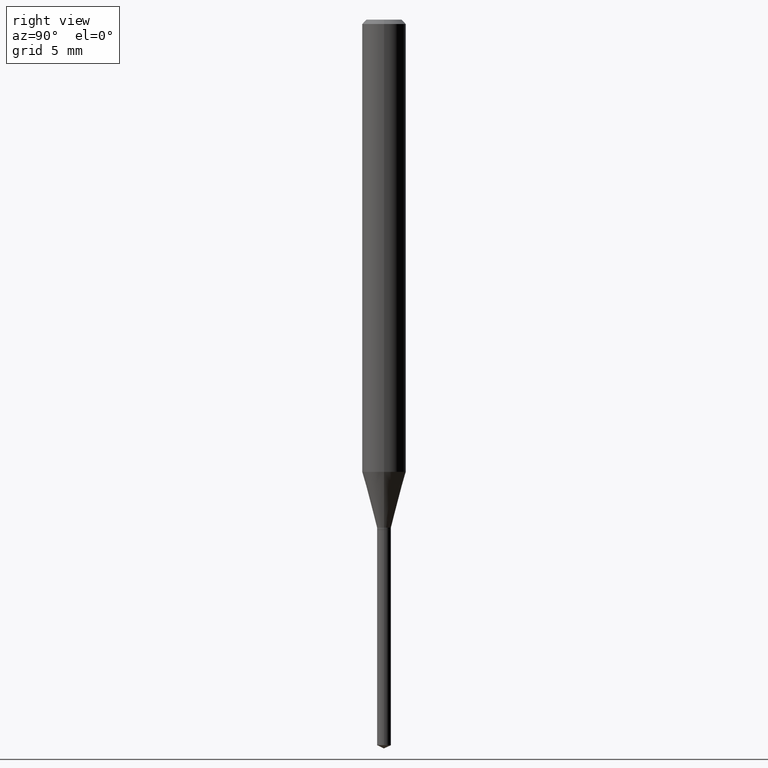
[diagram: clean part render]
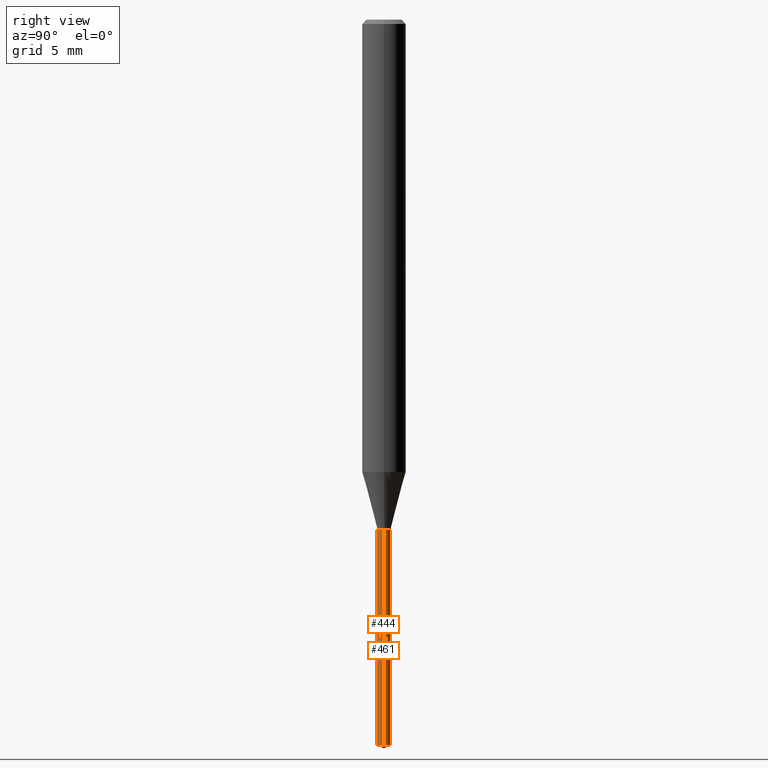
[diagram: same view with one multi-face feature highlighted, each face labeled with its STEP entity id]
A machine part, right view. The highlighted faces form ONE feature: a constant-radius fillet chain: 2 tangent blend faces with common blend radius 0.475 mm. The faces share edges in the B-rep.
Their STEP definitions:
[1] entity #444 (Cylinder):
#23 = EDGE_LOOP ( 'NONE', ( #286, #131, #60, #392 ) ) ;
#35 = CARTESIAN_POINT ( 'NONE',  ( -0.01870000000000000134, -4.678040645204832139E-15, -1.377900000000000125 ) ) ;
#60 = ORIENTED_EDGE ( 'NONE', *, *, #142, .T. ) ;
#61 = DIRECTION ( 'NONE',  ( -2.445468806185136597E-29, 3.491481338843145583E-15, 1.000000000000000000 ) ) ;
#72 = DIRECTION ( 'NONE',  ( -2.445468806185136877E-29, 3.491481338843145188E-15, 1.000000000000000000 ) ) ;
#104 = LINE ( 'NONE', #35, #136 ) ;
#108 = CIRCLE ( 'NONE', #395, 0.01870000000000000134 ) ;
#129 = VECTOR ( 'NONE', #405, 39.37007874015748143 ) ;
#131 = ORIENTED_EDGE ( 'NONE', *, *, #235, .T. ) ;
#136 = VECTOR ( 'NONE', #72, 39.37007874015748143 ) ;
#142 = EDGE_CURVE ( 'NONE', #298, #252, #210, .T. ) ;
#145 = DIRECTION ( 'NONE',  ( -2.445468806185136597E-29, 3.491481338843145583E-15, 1.000000000000000000 ) ) ;
#161 = AXIS2_PLACEMENT_3D ( 'NONE', #482, #61, #217 ) ;
#169 = VERTEX_POINT ( 'NONE', #259 ) ;
#170 = FACE_OUTER_BOUND ( 'NONE', #23, .T. ) ;
#192 = CIRCLE ( 'NONE', #161, 0.01870000000000000134 ) ;
#195 = CARTESIAN_POINT ( 'NONE',  ( 0.01869999999999999787, -6.973116863685898710E-15, -1.959780046792501729 ) ) ;
#207 = DIRECTION ( 'NONE',  ( -2.445468806185136597E-29, 3.491481338843145583E-15, 1.000000000000000000 ) ) ;
#210 = LINE ( 'NONE', #326, #129 ) ;
#217 = DIRECTION ( 'NONE',  ( 1.000000000000000000, -6.982962677686274599E-15, 0.000000000000000000 ) ) ;
#224 = VERTEX_POINT ( 'NONE', #408 ) ;
#235 = EDGE_CURVE ( 'NONE', #224, #298, #108, .T. ) ;
#252 = VERTEX_POINT ( 'NONE', #330 ) ;
#259 = CARTESIAN_POINT ( 'NONE',  ( -0.01870000000000000134, -5.693852307615430069E-15, -1.377900000000000125 ) ) ;
#262 = EDGE_CURVE ( 'NONE', #224, #169, #104, .T. ) ;
#284 = DIRECTION ( 'NONE',  ( 1.000000000000000000, -6.982962677686274599E-15, 0.000000000000000000 ) ) ;
#286 = ORIENTED_EDGE ( 'NONE', *, *, #262, .F. ) ;
#298 = VERTEX_POINT ( 'NONE', #195 ) ;
#326 = CARTESIAN_POINT ( 'NONE',  ( 0.01870000000000000134, -4.941493538864703639E-15, -1.377900000000000125 ) ) ;
#330 = CARTESIAN_POINT ( 'NONE',  ( 0.01870000000000000134, -4.941493538864703639E-15, -1.377900000000000125 ) ) ;
#360 = CYLINDRICAL_SURFACE ( 'NONE', #371, 0.01870000000000000134 ) ;
#371 = AXIS2_PLACEMENT_3D ( 'NONE', #400, #207, #284 ) ;
#392 = ORIENTED_EDGE ( 'NONE', *, *, #404, .F. ) ;
#395 = AXIS2_PLACEMENT_3D ( 'NONE', #455, #145, #410 ) ;
#400 = CARTESIAN_POINT ( 'NONE',  ( 3.369611468042499724E-29, -4.810912136791970439E-15, -1.377900000000000125 ) ) ;
#404 = EDGE_CURVE ( 'NONE', #169, #252, #192, .T. ) ;
#405 = DIRECTION ( 'NONE',  ( -2.445468806185136877E-29, 3.491481338843145188E-15, 1.000000000000000000 ) ) ;
#408 = CARTESIAN_POINT ( 'NONE',  ( -0.01869999999999999787, -6.709663970026027210E-15, -1.959780046792501729 ) ) ;
#410 = DIRECTION ( 'NONE',  ( 1.000000000000000000, -6.982962677686274599E-15, 0.000000000000000000 ) ) ;
#444 = ADVANCED_FACE ( 'NONE', ( #170 ), #360, .T. ) ;
#455 = CARTESIAN_POINT ( 'NONE',  ( 4.792580971415110270E-29, -6.842535461613166299E-15, -1.959780046792501729 ) ) ;
#482 = CARTESIAN_POINT ( 'NONE',  ( 3.369611468042499724E-29, -4.810912136791970439E-15, -1.377900000000000125 ) ) ;
[2] entity #461 (Cylinder):
#16 = EDGE_CURVE ( 'NONE', #298, #224, #292, .T. ) ;
#24 = AXIS2_PLACEMENT_3D ( 'NONE', #115, #316, #124 ) ;
#25 = DIRECTION ( 'NONE',  ( -2.445468806185136597E-29, 3.491481338843145583E-15, 1.000000000000000000 ) ) ;
#35 = CARTESIAN_POINT ( 'NONE',  ( -0.01870000000000000134, -4.678040645204832139E-15, -1.377900000000000125 ) ) ;
#72 = DIRECTION ( 'NONE',  ( -2.445468806185136877E-29, 3.491481338843145188E-15, 1.000000000000000000 ) ) ;
#87 = DIRECTION ( 'NONE',  ( -2.445468806185136597E-29, 3.491481338843145583E-15, 1.000000000000000000 ) ) ;
#97 = EDGE_LOOP ( 'NONE', ( #101, #436, #343, #248 ) ) ;
#101 = ORIENTED_EDGE ( 'NONE', *, *, #16, .T. ) ;
#104 = LINE ( 'NONE', #35, #136 ) ;
#115 = CARTESIAN_POINT ( 'NONE',  ( 3.369611468042499724E-29, -4.810912136791970439E-15, -1.377900000000000125 ) ) ;
#124 = DIRECTION ( 'NONE',  ( 1.000000000000000000, -6.982962677686274599E-15, 0.000000000000000000 ) ) ;
#129 = VECTOR ( 'NONE', #405, 39.37007874015748143 ) ;
#136 = VECTOR ( 'NONE', #72, 39.37007874015748143 ) ;
#142 = EDGE_CURVE ( 'NONE', #298, #252, #210, .T. ) ;
#155 = CARTESIAN_POINT ( 'NONE',  ( 4.792580971415110270E-29, -6.842535461613166299E-15, -1.959780046792501729 ) ) ;
#169 = VERTEX_POINT ( 'NONE', #259 ) ;
#195 = CARTESIAN_POINT ( 'NONE',  ( 0.01869999999999999787, -6.973116863685898710E-15, -1.959780046792501729 ) ) ;
#203 = CIRCLE ( 'NONE', #24, 0.01870000000000000134 ) ;
#210 = LINE ( 'NONE', #326, #129 ) ;
#213 = FACE_OUTER_BOUND ( 'NONE', #97, .T. ) ;
#224 = VERTEX_POINT ( 'NONE', #408 ) ;
#238 = DIRECTION ( 'NONE',  ( 1.000000000000000000, -6.982962677686274599E-15, 0.000000000000000000 ) ) ;
#240 = AXIS2_PLACEMENT_3D ( 'NONE', #434, #25, #477 ) ;
#248 = ORIENTED_EDGE ( 'NONE', *, *, #142, .F. ) ;
#252 = VERTEX_POINT ( 'NONE', #330 ) ;
#259 = CARTESIAN_POINT ( 'NONE',  ( -0.01870000000000000134, -5.693852307615430069E-15, -1.377900000000000125 ) ) ;
#262 = EDGE_CURVE ( 'NONE', #224, #169, #104, .T. ) ;
#292 = CIRCLE ( 'NONE', #385, 0.01870000000000000134 ) ;
#298 = VERTEX_POINT ( 'NONE', #195 ) ;
#316 = DIRECTION ( 'NONE',  ( -2.445468806185136597E-29, 3.491481338843145583E-15, 1.000000000000000000 ) ) ;
#326 = CARTESIAN_POINT ( 'NONE',  ( 0.01870000000000000134, -4.941493538864703639E-15, -1.377900000000000125 ) ) ;
#329 = EDGE_CURVE ( 'NONE', #252, #169, #203, .T. ) ;
#330 = CARTESIAN_POINT ( 'NONE',  ( 0.01870000000000000134, -4.941493538864703639E-15, -1.377900000000000125 ) ) ;
#343 = ORIENTED_EDGE ( 'NONE', *, *, #329, .F. ) ;
#353 = CYLINDRICAL_SURFACE ( 'NONE', #240, 0.01870000000000000134 ) ;
#385 = AXIS2_PLACEMENT_3D ( 'NONE', #155, #87, #238 ) ;
#405 = DIRECTION ( 'NONE',  ( -2.445468806185136877E-29, 3.491481338843145188E-15, 1.000000000000000000 ) ) ;
#408 = CARTESIAN_POINT ( 'NONE',  ( -0.01869999999999999787, -6.709663970026027210E-15, -1.959780046792501729 ) ) ;
#434 = CARTESIAN_POINT ( 'NONE',  ( 3.369611468042499724E-29, -4.810912136791970439E-15, -1.377900000000000125 ) ) ;
#436 = ORIENTED_EDGE ( 'NONE', *, *, #262, .T. ) ;
#461 = ADVANCED_FACE ( 'NONE', ( #213 ), #353, .T. ) ;
#477 = DIRECTION ( 'NONE',  ( 1.000000000000000000, -6.982962677686274599E-15, 0.000000000000000000 ) ) ;